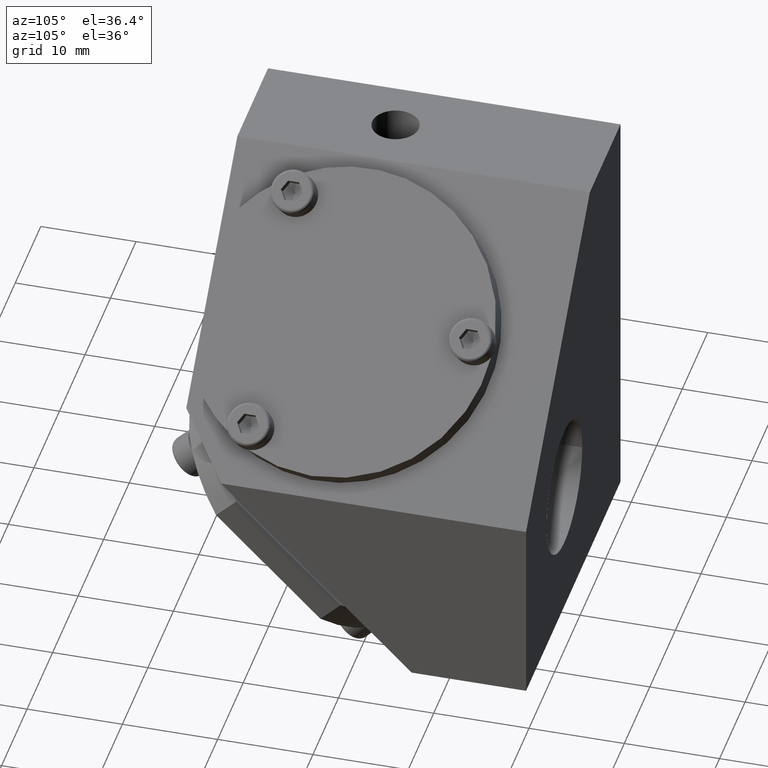
[diagram: clean part render]
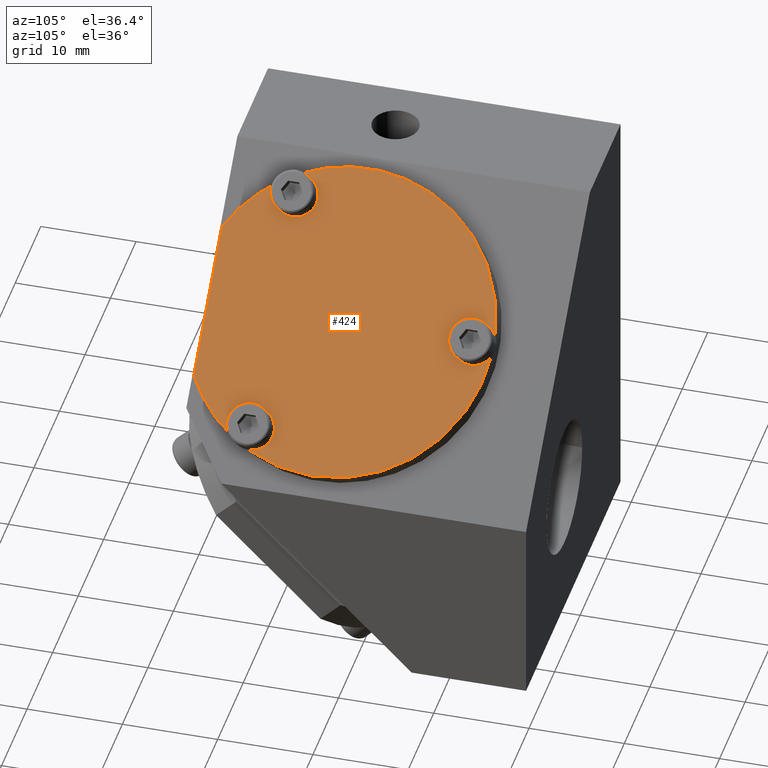
[diagram: same view with one face highlighted and labeled with its STEP entity id]
A machine part, auxiliary view. The second image highlights one B-rep face of the part: STEP entity #424.
In plain terms, the highlighted face is a freeform B-spline surface patch.
Its self-contained STEP definition (entity closure, byte-faithful):
#81=B_SPLINE_SURFACE_WITH_KNOTS('',1,1,((#14206,#14207),(#14208,#14209)),
 .UNSPECIFIED.,.F.,.F.,.F.,(2,2),(2,2),(-10.9537592390235,32.8612777170714),
(-55.1669318215805,-18.9724675358662),.UNSPECIFIED.);
#98=B_SPLINE_SURFACE_WITH_KNOTS('',1,1,((#14710,#14711),(#14712,#14713)),
 .UNSPECIFIED.,.F.,.F.,.F.,(2,2),(2,2),(-7.96546289619784,7.96546289619782),
(-23.8963886885934,-7.9654628961978),.UNSPECIFIED.);
#424=ADVANCED_FACE('',(#674),#81,.T.);
#674=FACE_OUTER_BOUND('',#925,.T.);
#925=EDGE_LOOP('',(#1467,#1468,#1469,#1470,#1471,#1472,#1473,#1474,#1475,
#1476,#1477,#1478,#1479,#1480));
#1467=ORIENTED_EDGE('',*,*,#7224,.T.);
#1468=ORIENTED_EDGE('',*,*,#7220,.F.);
#1469=ORIENTED_EDGE('',*,*,#7225,.T.);
#1470=ORIENTED_EDGE('',*,*,#7226,.T.);
#1471=ORIENTED_EDGE('',*,*,#7227,.T.);
#1472=ORIENTED_EDGE('',*,*,#7228,.T.);
#1473=ORIENTED_EDGE('',*,*,#7229,.T.);
#1474=ORIENTED_EDGE('',*,*,#7230,.T.);
#1475=ORIENTED_EDGE('',*,*,#7231,.T.);
#1476=ORIENTED_EDGE('',*,*,#7232,.T.);
#1477=ORIENTED_EDGE('',*,*,#7233,.T.);
#1478=ORIENTED_EDGE('',*,*,#7234,.T.);
#1479=ORIENTED_EDGE('',*,*,#7235,.T.);
#1480=ORIENTED_EDGE('',*,*,#7236,.T.);
#2793=PCURVE('',#9150,#4123);
#2797=PCURVE('',#81,#4127);
#2798=PCURVE('',#81,#4128);
#2799=PCURVE('',#81,#4129);
#2800=PCURVE('',#81,#4130);
#2801=PCURVE('',#81,#4131);
#2802=PCURVE('',#81,#4132);
#2803=PCURVE('',#81,#4133);
#2804=PCURVE('',#81,#4134);
#2805=PCURVE('',#81,#4135);
#2806=PCURVE('',#81,#4136);
#2807=PCURVE('',#81,#4137);
#2808=PCURVE('',#81,#4138);
#2809=PCURVE('',#81,#4139);
#2810=PCURVE('',#81,#4140);
#2836=PCURVE('',#9154,#4166);
#2853=PCURVE('',#9156,#4183);
#2855=PCURVE('',#9156,#4185);
#3027=PCURVE('',#98,#4357);
#3103=PCURVE('',#9187,#4433);
#3105=PCURVE('',#9187,#4435);
#3107=PCURVE('',#9187,#4437);
#3109=PCURVE('',#9187,#4439);
#3474=PCURVE('',#9233,#4804);
#3476=PCURVE('',#9233,#4806);
#3486=PCURVE('',#9235,#4816);
#3488=PCURVE('',#9235,#4818);
#3498=PCURVE('',#9237,#4828);
#4123=DEFINITIONAL_REPRESENTATION('',(#5443),#23564);
#4127=DEFINITIONAL_REPRESENTATION('',(#7945),#23564);
#4128=DEFINITIONAL_REPRESENTATION('',(#7946),#23564);
#4129=DEFINITIONAL_REPRESENTATION('',(#7948),#23564);
#4130=DEFINITIONAL_REPRESENTATION('',(#7950),#23564);
#4131=DEFINITIONAL_REPRESENTATION('',(#5448),#23564);
#4132=DEFINITIONAL_REPRESENTATION('',(#7952),#23564);
#4133=DEFINITIONAL_REPRESENTATION('',(#7954),#23564);
#4134=DEFINITIONAL_REPRESENTATION('',(#7956),#23564);
#4135=DEFINITIONAL_REPRESENTATION('',(#7958),#23564);
#4136=DEFINITIONAL_REPRESENTATION('',(#7960),#23564);
#4137=DEFINITIONAL_REPRESENTATION('',(#7962),#23564);
#4138=DEFINITIONAL_REPRESENTATION('',(#7964),#23564);
#4139=DEFINITIONAL_REPRESENTATION('',(#7966),#23564);
#4140=DEFINITIONAL_REPRESENTATION('',(#7968),#23564);
#4166=DEFINITIONAL_REPRESENTATION('',(#5464),#23564);
#4183=DEFINITIONAL_REPRESENTATION('',(#5474),#23564);
#4185=DEFINITIONAL_REPRESENTATION('',(#5476),#23564);
#4357=DEFINITIONAL_REPRESENTATION('',(#5598),#23564);
#4433=DEFINITIONAL_REPRESENTATION('',(#5654),#23564);
#4435=DEFINITIONAL_REPRESENTATION('',(#5656),#23564);
#4437=DEFINITIONAL_REPRESENTATION('',(#5658),#23564);
#4439=DEFINITIONAL_REPRESENTATION('',(#5660),#23564);
#4804=DEFINITIONAL_REPRESENTATION('',(#6002),#23564);
#4806=DEFINITIONAL_REPRESENTATION('',(#6004),#23564);
#4816=DEFINITIONAL_REPRESENTATION('',(#6014),#23564);
#4818=DEFINITIONAL_REPRESENTATION('',(#6016),#23564);
#4828=DEFINITIONAL_REPRESENTATION('',(#6026),#23564);
#5443=B_SPLINE_CURVE_WITH_KNOTS('',1,(#16304,#16305),.UNSPECIFIED.,.F.,
 .F.,(2,2),(-7.06858347057708,0.),.UNSPECIFIED.);
#5447=B_SPLINE_CURVE_WITH_KNOTS('',1,(#16347,#16348),.UNSPECIFIED.,.F.,
 .F.,(2,2),(0.,15.4919333848297),.UNSPECIFIED.);
#5448=B_SPLINE_CURVE_WITH_KNOTS('',1,(#16349,#16350),.UNSPECIFIED.,.F.,
 .F.,(2,2),(0.,15.4919333848297),.UNSPECIFIED.);
#5464=B_SPLINE_CURVE_WITH_KNOTS('',1,(#16579,#16580),.UNSPECIFIED.,.F.,
 .F.,(2,2),(0.,7.06858347057696),.UNSPECIFIED.);
#5474=B_SPLINE_CURVE_WITH_KNOTS('',1,(#16686,#16687),.UNSPECIFIED.,.F.,
 .F.,(2,2),(0.,2.38347442152525),.UNSPECIFIED.);
#5476=B_SPLINE_CURVE_WITH_KNOTS('',1,(#16690,#16691),.UNSPECIFIED.,.F.,
 .F.,(2,2),(0.,2.38347442152539),.UNSPECIFIED.);
#5598=B_SPLINE_CURVE_WITH_KNOTS('',1,(#17687,#17688),.UNSPECIFIED.,.F.,
 .F.,(2,2),(0.,15.4919333848297),.UNSPECIFIED.);
#5654=B_SPLINE_CURVE_WITH_KNOTS('',1,(#18004,#18005),.UNSPECIFIED.,.F.,
 .F.,(2,2),(0.,7.56722842218181),.UNSPECIFIED.);
#5656=B_SPLINE_CURVE_WITH_KNOTS('',1,(#18008,#18009),.UNSPECIFIED.,.F.,
 .F.,(2,2),(0.,31.3059931734548),.UNSPECIFIED.);
#5658=B_SPLINE_CURVE_WITH_KNOTS('',1,(#18012,#18013),.UNSPECIFIED.,.F.,
 .F.,(2,2),(0.,31.305993173454),.UNSPECIFIED.);
#5660=B_SPLINE_CURVE_WITH_KNOTS('',1,(#18016,#18017),.UNSPECIFIED.,.F.,
 .F.,(2,2),(0.,7.56722842218153),.UNSPECIFIED.);
#6002=B_SPLINE_CURVE_WITH_KNOTS('',1,(#21495,#21496),.UNSPECIFIED.,.F.,
 .F.,(2,2),(0.,0.0272799313342184),.UNSPECIFIED.);
#6004=B_SPLINE_CURVE_WITH_KNOTS('',1,(#21499,#21500),.UNSPECIFIED.,.F.,
 .F.,(2,2),(7.06858347057708,11.8082523822961),.UNSPECIFIED.);
#6014=B_SPLINE_CURVE_WITH_KNOTS('',1,(#21531,#21532),.UNSPECIFIED.,.F.,
 .F.,(2,2),(0.,4.7396689117186),.UNSPECIFIED.);
#6016=B_SPLINE_CURVE_WITH_KNOTS('',1,(#21535,#21536),.UNSPECIFIED.,.F.,
 .F.,(2,2),(7.06858347057696,7.09586340191074),.UNSPECIFIED.);
#6026=B_SPLINE_CURVE_WITH_KNOTS('',1,(#21567,#21568),.UNSPECIFIED.,.F.,
 .F.,(2,2),(2.38347442152525,9.45205789210234),.UNSPECIFIED.);
#6510=SURFACE_CURVE('',#7940,(#2793,#2798),.PCURVE_S1.);
#6514=SURFACE_CURVE('',#7944,(#2797,#3474),.PCURVE_S1.);
#6515=SURFACE_CURVE('',#7947,(#2799,#3476),.PCURVE_S1.);
#6516=SURFACE_CURVE('',#7949,(#2800,#3103),.PCURVE_S1.);
#6517=SURFACE_CURVE('',#5447,(#2801,#3027),.PCURVE_S1.);
#6518=SURFACE_CURVE('',#7951,(#2802,#3109),.PCURVE_S1.);
#6519=SURFACE_CURVE('',#7953,(#2803,#3486),.PCURVE_S1.);
#6520=SURFACE_CURVE('',#7955,(#2804,#2836),.PCURVE_S1.);
#6521=SURFACE_CURVE('',#7957,(#2805,#3488),.PCURVE_S1.);
#6522=SURFACE_CURVE('',#7959,(#2806,#3107),.PCURVE_S1.);
#6523=SURFACE_CURVE('',#7961,(#2807,#2853),.PCURVE_S1.);
#6524=SURFACE_CURVE('',#7963,(#2808,#3498),.PCURVE_S1.);
#6525=SURFACE_CURVE('',#7965,(#2809,#2855),.PCURVE_S1.);
#6526=SURFACE_CURVE('',#7967,(#2810,#3105),.PCURVE_S1.);
#7220=EDGE_CURVE('',#8703,#8704,#6510,.T.);
#7224=EDGE_CURVE('',#8695,#8704,#6514,.T.);
#7225=EDGE_CURVE('',#8703,#8696,#6515,.T.);
#7226=EDGE_CURVE('',#8696,#8707,#6516,.T.);
#7227=EDGE_CURVE('',#8707,#8708,#6517,.T.);
#7228=EDGE_CURVE('',#8708,#8709,#6518,.T.);
#7229=EDGE_CURVE('',#8709,#8710,#6519,.T.);
#7230=EDGE_CURVE('',#8710,#8711,#6520,.T.);
#7231=EDGE_CURVE('',#8711,#8712,#6521,.T.);
#7232=EDGE_CURVE('',#8712,#8713,#6522,.T.);
#7233=EDGE_CURVE('',#8713,#8714,#6523,.T.);
#7234=EDGE_CURVE('',#8714,#8715,#6524,.T.);
#7235=EDGE_CURVE('',#8715,#8716,#6525,.T.);
#7236=EDGE_CURVE('',#8716,#8695,#6526,.T.);
#7940=(
BOUNDED_CURVE()
B_SPLINE_CURVE(2,(#16299,#16300,#16301,#16302,#16303),.UNSPECIFIED.,.F.,
 .F.)
B_SPLINE_CURVE_WITH_KNOTS((3,2,3),(-7.06858347057708,-3.53429173528854,
0.),.UNSPECIFIED.)
CURVE()
GEOMETRIC_REPRESENTATION_ITEM()
RATIONAL_B_SPLINE_CURVE((1.,0.707106781186551,1.,0.707106781186551,1.))
REPRESENTATION_ITEM('')
);
#7944=(
BOUNDED_CURVE()
B_SPLINE_CURVE(2,(#16320,#16321,#16322),.UNSPECIFIED.,.F.,.F.)
B_SPLINE_CURVE_WITH_KNOTS((3,3),(0.,0.0272799313342184),.UNSPECIFIED.)
CURVE()
GEOMETRIC_REPRESENTATION_ITEM()
RATIONAL_B_SPLINE_CURVE((1.,0.999981624888426,1.))
REPRESENTATION_ITEM('')
);
#7945=(
BOUNDED_CURVE()
B_SPLINE_CURVE(2,(#16323,#16324,#16325),.UNSPECIFIED.,.F.,.F.)
B_SPLINE_CURVE_WITH_KNOTS((3,3),(0.,0.0272799313342184),.UNSPECIFIED.)
CURVE()
GEOMETRIC_REPRESENTATION_ITEM()
RATIONAL_B_SPLINE_CURVE((1.,0.999981624879633,1.))
REPRESENTATION_ITEM('')
);
#7946=(
BOUNDED_CURVE()
B_SPLINE_CURVE(2,(#16326,#16327,#16328,#16329,#16330),.UNSPECIFIED.,.F.,
 .F.)
B_SPLINE_CURVE_WITH_KNOTS((3,2,3),(-7.06858347057708,-3.53429173528854,
0.),.UNSPECIFIED.)
CURVE()
GEOMETRIC_REPRESENTATION_ITEM()
RATIONAL_B_SPLINE_CURVE((1.,0.707106781186551,1.,0.707106781186551,1.))
REPRESENTATION_ITEM('')
);
#7947=(
BOUNDED_CURVE()
B_SPLINE_CURVE(2,(#16331,#16332,#16333,#16334,#16335),.UNSPECIFIED.,.F.,
 .F.)
B_SPLINE_CURVE_WITH_KNOTS((3,2,3),(7.06858347057708,9.43841792643657,11.8082523822961),
 .UNSPECIFIED.)
CURVE()
GEOMETRIC_REPRESENTATION_ITEM()
RATIONAL_B_SPLINE_CURVE((1.,0.864505876024963,1.,0.864505876024963,1.))
REPRESENTATION_ITEM('')
);
#7948=(
BOUNDED_CURVE()
B_SPLINE_CURVE(2,(#16336,#16337,#16338,#16339,#16340),.UNSPECIFIED.,.F.,
 .F.)
B_SPLINE_CURVE_WITH_KNOTS((3,2,3),(7.06858347057708,9.43841792643657,11.8082523822961),
 .UNSPECIFIED.)
CURVE()
GEOMETRIC_REPRESENTATION_ITEM()
RATIONAL_B_SPLINE_CURVE((1.,0.864505876024963,1.,0.864505876024963,1.))
REPRESENTATION_ITEM('')
);
#7949=(
BOUNDED_CURVE()
B_SPLINE_CURVE(2,(#16341,#16342,#16343),.UNSPECIFIED.,.F.,.F.)
B_SPLINE_CURVE_WITH_KNOTS((3,3),(0.,7.56722842218181),.UNSPECIFIED.)
CURVE()
GEOMETRIC_REPRESENTATION_ITEM()
RATIONAL_B_SPLINE_CURVE((1.,0.972169632056699,1.))
REPRESENTATION_ITEM('')
);
#7950=(
BOUNDED_CURVE()
B_SPLINE_CURVE(2,(#16344,#16345,#16346),.UNSPECIFIED.,.F.,.F.)
B_SPLINE_CURVE_WITH_KNOTS((3,3),(0.,7.56722842218181),.UNSPECIFIED.)
CURVE()
GEOMETRIC_REPRESENTATION_ITEM()
RATIONAL_B_SPLINE_CURVE((1.,0.972169632056699,1.))
REPRESENTATION_ITEM('')
);
#7951=(
BOUNDED_CURVE()
B_SPLINE_CURVE(2,(#16351,#16352,#16353),.UNSPECIFIED.,.F.,.F.)
B_SPLINE_CURVE_WITH_KNOTS((3,3),(0.,7.56722842218153),.UNSPECIFIED.)
CURVE()
GEOMETRIC_REPRESENTATION_ITEM()
RATIONAL_B_SPLINE_CURVE((1.,0.972169632056689,1.))
REPRESENTATION_ITEM('')
);
#7952=(
BOUNDED_CURVE()
B_SPLINE_CURVE(2,(#16354,#16355,#16356),.UNSPECIFIED.,.F.,.F.)
B_SPLINE_CURVE_WITH_KNOTS((3,3),(0.,7.56722842218153),.UNSPECIFIED.)
CURVE()
GEOMETRIC_REPRESENTATION_ITEM()
RATIONAL_B_SPLINE_CURVE((1.,0.972169632056689,1.))
REPRESENTATION_ITEM('')
);
#7953=(
BOUNDED_CURVE()
B_SPLINE_CURVE(2,(#16357,#16358,#16359,#16360,#16361),.UNSPECIFIED.,.F.,
 .F.)
B_SPLINE_CURVE_WITH_KNOTS((3,2,3),(0.,2.3698344558593,4.7396689117186),
 .UNSPECIFIED.)
CURVE()
GEOMETRIC_REPRESENTATION_ITEM()
RATIONAL_B_SPLINE_CURVE((1.,0.864505876024987,1.,0.864505876024987,1.))
REPRESENTATION_ITEM('')
);
#7954=(
BOUNDED_CURVE()
B_SPLINE_CURVE(2,(#16362,#16363,#16364,#16365,#16366),.UNSPECIFIED.,.F.,
 .F.)
B_SPLINE_CURVE_WITH_KNOTS((3,2,3),(0.,2.3698344558593,4.7396689117186),
 .UNSPECIFIED.)
CURVE()
GEOMETRIC_REPRESENTATION_ITEM()
RATIONAL_B_SPLINE_CURVE((1.,0.864505876024987,1.,0.864505876024987,1.))
REPRESENTATION_ITEM('')
);
#7955=(
BOUNDED_CURVE()
B_SPLINE_CURVE(2,(#16367,#16368,#16369,#16370,#16371),.UNSPECIFIED.,.F.,
 .F.)
B_SPLINE_CURVE_WITH_KNOTS((3,2,3),(0.,3.53429173528848,7.06858347057696),
 .UNSPECIFIED.)
CURVE()
GEOMETRIC_REPRESENTATION_ITEM()
RATIONAL_B_SPLINE_CURVE((1.,0.707106781186547,1.,0.707106781186547,1.))
REPRESENTATION_ITEM('')
);
#7956=(
BOUNDED_CURVE()
B_SPLINE_CURVE(2,(#16372,#16373,#16374,#16375,#16376),.UNSPECIFIED.,.F.,
 .F.)
B_SPLINE_CURVE_WITH_KNOTS((3,2,3),(0.,3.53429173528848,7.06858347057696),
 .UNSPECIFIED.)
CURVE()
GEOMETRIC_REPRESENTATION_ITEM()
RATIONAL_B_SPLINE_CURVE((1.,0.707106781186547,1.,0.707106781186547,1.))
REPRESENTATION_ITEM('')
);
#7957=(
BOUNDED_CURVE()
B_SPLINE_CURVE(2,(#16377,#16378,#16379),.UNSPECIFIED.,.F.,.F.)
B_SPLINE_CURVE_WITH_KNOTS((3,3),(7.06858347057696,7.09586340191074),
 .UNSPECIFIED.)
CURVE()
GEOMETRIC_REPRESENTATION_ITEM()
RATIONAL_B_SPLINE_CURVE((1.,0.999981624888383,1.))
REPRESENTATION_ITEM('')
);
#7958=(
BOUNDED_CURVE()
B_SPLINE_CURVE(2,(#16380,#16381,#16382),.UNSPECIFIED.,.F.,.F.)
B_SPLINE_CURVE_WITH_KNOTS((3,3),(7.06858347057696,7.09586340191074),
 .UNSPECIFIED.)
CURVE()
GEOMETRIC_REPRESENTATION_ITEM()
RATIONAL_B_SPLINE_CURVE((1.,0.999981624879643,1.))
REPRESENTATION_ITEM('')
);
#7959=(
BOUNDED_CURVE()
B_SPLINE_CURVE(2,(#16383,#16384,#16385,#16386,#16387),.UNSPECIFIED.,.F.,
 .F.)
B_SPLINE_CURVE_WITH_KNOTS((3,2,3),(0.,15.652996586727,31.305993173454),
 .UNSPECIFIED.)
CURVE()
GEOMETRIC_REPRESENTATION_ITEM()
RATIONAL_B_SPLINE_CURVE((1.,0.882729685203361,1.,0.882729685203361,1.))
REPRESENTATION_ITEM('')
);
#7960=(
BOUNDED_CURVE()
B_SPLINE_CURVE(2,(#16388,#16389,#16390,#16391,#16392),.UNSPECIFIED.,.F.,
 .F.)
B_SPLINE_CURVE_WITH_KNOTS((3,2,3),(0.,15.652996586727,31.305993173454),
 .UNSPECIFIED.)
CURVE()
GEOMETRIC_REPRESENTATION_ITEM()
RATIONAL_B_SPLINE_CURVE((1.,0.882729685203361,1.,0.882729685203361,1.))
REPRESENTATION_ITEM('')
);
#7961=(
BOUNDED_CURVE()
B_SPLINE_CURVE(2,(#16393,#16394,#16395),.UNSPECIFIED.,.F.,.F.)
B_SPLINE_CURVE_WITH_KNOTS((3,3),(0.,2.38347442152525),.UNSPECIFIED.)
CURVE()
GEOMETRIC_REPRESENTATION_ITEM()
RATIONAL_B_SPLINE_CURVE((1.,0.862978405547634,1.))
REPRESENTATION_ITEM('')
);
#7962=(
BOUNDED_CURVE()
B_SPLINE_CURVE(2,(#16396,#16397,#16398),.UNSPECIFIED.,.F.,.F.)
B_SPLINE_CURVE_WITH_KNOTS((3,3),(0.,2.38347442152525),.UNSPECIFIED.)
CURVE()
GEOMETRIC_REPRESENTATION_ITEM()
RATIONAL_B_SPLINE_CURVE((1.,0.862978405547634,1.))
REPRESENTATION_ITEM('')
);
#7963=(
BOUNDED_CURVE()
B_SPLINE_CURVE(2,(#16399,#16400,#16401,#16402,#16403),.UNSPECIFIED.,.F.,
 .F.)
B_SPLINE_CURVE_WITH_KNOTS((3,2,3),(2.38347442152525,5.91776615681379,9.45205789210234),
 .UNSPECIFIED.)
CURVE()
GEOMETRIC_REPRESENTATION_ITEM()
RATIONAL_B_SPLINE_CURVE((1.,0.707106781186548,1.,0.707106781186548,1.))
REPRESENTATION_ITEM('')
);
#7964=(
BOUNDED_CURVE()
B_SPLINE_CURVE(2,(#16404,#16405,#16406,#16407,#16408),.UNSPECIFIED.,.F.,
 .F.)
B_SPLINE_CURVE_WITH_KNOTS((3,2,3),(2.38347442152525,5.91776615681379,9.45205789210234),
 .UNSPECIFIED.)
CURVE()
GEOMETRIC_REPRESENTATION_ITEM()
RATIONAL_B_SPLINE_CURVE((1.,0.707106781186548,1.,0.707106781186548,1.))
REPRESENTATION_ITEM('')
);
#7965=(
BOUNDED_CURVE()
B_SPLINE_CURVE(2,(#16409,#16410,#16411),.UNSPECIFIED.,.F.,.F.)
B_SPLINE_CURVE_WITH_KNOTS((3,3),(0.,2.38347442152539),.UNSPECIFIED.)
CURVE()
GEOMETRIC_REPRESENTATION_ITEM()
RATIONAL_B_SPLINE_CURVE((1.,0.86297840554761,1.))
REPRESENTATION_ITEM('')
);
#7966=(
BOUNDED_CURVE()
B_SPLINE_CURVE(2,(#16412,#16413,#16414),.UNSPECIFIED.,.F.,.F.)
B_SPLINE_CURVE_WITH_KNOTS((3,3),(0.,2.38347442152539),.UNSPECIFIED.)
CURVE()
GEOMETRIC_REPRESENTATION_ITEM()
RATIONAL_B_SPLINE_CURVE((1.,0.86297840554761,1.))
REPRESENTATION_ITEM('')
);
#7967=(
BOUNDED_CURVE()
B_SPLINE_CURVE(2,(#16415,#16416,#16417,#16418,#16419),.UNSPECIFIED.,.F.,
 .F.)
B_SPLINE_CURVE_WITH_KNOTS((3,2,3),(0.,23.8314204925631,31.3059931734548),
 .UNSPECIFIED.)
CURVE()
GEOMETRIC_REPRESENTATION_ITEM()
RATIONAL_B_SPLINE_CURVE((1.,0.731037207884863,1.,0.974265593255028,1.))
REPRESENTATION_ITEM('')
);
#7968=(
BOUNDED_CURVE()
B_SPLINE_CURVE(2,(#16420,#16421,#16422,#16423,#16424),.UNSPECIFIED.,.F.,
 .F.)
B_SPLINE_CURVE_WITH_KNOTS((3,2,3),(0.,15.6529965867274,31.3059931734548),
 .UNSPECIFIED.)
CURVE()
GEOMETRIC_REPRESENTATION_ITEM()
RATIONAL_B_SPLINE_CURVE((1.,0.882729685203357,1.,0.882729685203357,1.))
REPRESENTATION_ITEM('')
);
#8695=VERTEX_POINT('',#15861);
#8696=VERTEX_POINT('',#15862);
#8703=VERTEX_POINT('',#15869);
#8704=VERTEX_POINT('',#15870);
#8707=VERTEX_POINT('',#15873);
#8708=VERTEX_POINT('',#15874);
#8709=VERTEX_POINT('',#15875);
#8710=VERTEX_POINT('',#15876);
#8711=VERTEX_POINT('',#15877);
#8712=VERTEX_POINT('',#15878);
#8713=VERTEX_POINT('',#15879);
#8714=VERTEX_POINT('',#15880);
#8715=VERTEX_POINT('',#15881);
#8716=VERTEX_POINT('',#15882);
#9150=(
BOUNDED_SURFACE()
B_SPLINE_SURFACE(2,1,((#14196,#14197),(#14198,#14199),(#14200,#14201),(#14202,
#14203),(#14204,#14205)),.UNSPECIFIED.,.F.,.F.,.F.)
B_SPLINE_SURFACE_WITH_KNOTS((3,2,3),(2,2),(-7.7715611723761E-16,1.5707963267949,
3.14159265358979),(0.,8.77672391511751),.UNSPECIFIED.)
GEOMETRIC_REPRESENTATION_ITEM()
RATIONAL_B_SPLINE_SURFACE(((1.,1.),(0.707106781186548,0.707106781186548),
(1.,1.),(0.707106781186548,0.707106781186548),(1.,1.)))
REPRESENTATION_ITEM('')
SURFACE()
);
#9154=(
BOUNDED_SURFACE()
B_SPLINE_SURFACE(2,1,((#14268,#14269),(#14270,#14271),(#14272,#14273),(#14274,
#14275),(#14276,#14277)),.UNSPECIFIED.,.F.,.F.,.F.)
B_SPLINE_SURFACE_WITH_KNOTS((3,2,3),(2,2),(-2.27595720048157E-15,1.5707963267949,
3.14159265358979),(0.,8.4461207748232),.UNSPECIFIED.)
GEOMETRIC_REPRESENTATION_ITEM()
RATIONAL_B_SPLINE_SURFACE(((1.,1.),(0.707106781186548,0.707106781186548),
(1.,1.),(0.707106781186548,0.707106781186548),(1.,1.)))
REPRESENTATION_ITEM('')
SURFACE()
);
#9156=(
BOUNDED_SURFACE()
B_SPLINE_SURFACE(2,1,((#14296,#14297),(#14298,#14299),(#14300,#14301),(#14302,
#14303),(#14304,#14305)),.UNSPECIFIED.,.F.,.F.,.F.)
B_SPLINE_SURFACE_WITH_KNOTS((3,2,3),(2,2),(-6.38378239159465E-16,1.5707963267949,
3.14159265358979),(0.,8.44646770503396),.UNSPECIFIED.)
GEOMETRIC_REPRESENTATION_ITEM()
RATIONAL_B_SPLINE_SURFACE(((1.,1.),(0.707106781186548,0.707106781186548),
(1.,1.),(0.707106781186548,0.707106781186548),(1.,1.)))
REPRESENTATION_ITEM('')
SURFACE()
);
#9187=(
BOUNDED_SURFACE()
B_SPLINE_SURFACE(2,1,((#14906,#14907),(#14908,#14909),(#14910,#14911),(#14912,
#14913),(#14914,#14915),(#14916,#14917),(#14918,#14919),(#14920,#14921),
(#14922,#14923)),.UNSPECIFIED.,.T.,.F.,.F.)
B_SPLINE_SURFACE_WITH_KNOTS((3,2,2,2,3),(2,2),(0.,32.0000000000001,63.9999999999999,
96.,128.),(0.,47.9856081796871),.UNSPECIFIED.)
GEOMETRIC_REPRESENTATION_ITEM()
RATIONAL_B_SPLINE_SURFACE(((1.,1.),(0.707106781186548,0.707106781186548),
(1.,1.),(0.707106781186548,0.707106781186548),(1.,1.),(0.707106781186548,
0.707106781186548),(1.,1.),(0.707106781186548,0.707106781186548),(1.,1.)))
REPRESENTATION_ITEM('')
SURFACE()
);
#9233=(
BOUNDED_SURFACE()
B_SPLINE_SURFACE(2,1,((#15750,#15751),(#15752,#15753),(#15754,#15755),(#15756,
#15757),(#15758,#15759)),.UNSPECIFIED.,.F.,.F.,.F.)
B_SPLINE_SURFACE_WITH_KNOTS((3,2,3),(2,2),(3.14159265358979,4.71238898038469,
6.28318530717959),(0.,8.77672391511751),.UNSPECIFIED.)
GEOMETRIC_REPRESENTATION_ITEM()
RATIONAL_B_SPLINE_SURFACE(((1.,1.),(0.707106781186548,0.707106781186548),
(1.,1.),(0.707106781186548,0.707106781186548),(1.,1.)))
REPRESENTATION_ITEM('')
SURFACE()
);
#9235=(
BOUNDED_SURFACE()
B_SPLINE_SURFACE(2,1,((#15770,#15771),(#15772,#15773),(#15774,#15775),(#15776,
#15777),(#15778,#15779)),.UNSPECIFIED.,.F.,.F.,.F.)
B_SPLINE_SURFACE_WITH_KNOTS((3,2,3),(2,2),(3.14159265358979,4.71238898038469,
6.28318530717959),(0.,8.4461207748232),.UNSPECIFIED.)
GEOMETRIC_REPRESENTATION_ITEM()
RATIONAL_B_SPLINE_SURFACE(((1.,1.),(0.707106781186548,0.707106781186548),
(1.,1.),(0.707106781186548,0.707106781186548),(1.,1.)))
REPRESENTATION_ITEM('')
SURFACE()
);
#9237=(
BOUNDED_SURFACE()
B_SPLINE_SURFACE(2,1,((#15790,#15791),(#15792,#15793),(#15794,#15795),(#15796,
#15797),(#15798,#15799)),.UNSPECIFIED.,.F.,.F.,.F.)
B_SPLINE_SURFACE_WITH_KNOTS((3,2,3),(2,2),(3.14159265358979,4.71238898038469,
6.28318530717959),(0.,8.44646770503396),.UNSPECIFIED.)
GEOMETRIC_REPRESENTATION_ITEM()
RATIONAL_B_SPLINE_SURFACE(((1.,1.),(0.707106781186548,0.707106781186548),
(1.,1.),(0.707106781186548,0.707106781186548),(1.,1.)))
REPRESENTATION_ITEM('')
SURFACE()
);
#14196=CARTESIAN_POINT('',(-0.156473279994323,87.2942821912086,11.9999998532089));
#14197=CARTESIAN_POINT('',(-6.36255427697605,81.0882011942268,11.9999998532089));
#14198=CARTESIAN_POINT('',(-0.156473279994325,87.2942821912086,9.74999985320889));
#14199=CARTESIAN_POINT('',(-6.36255427697606,81.0882011942268,9.74999985320888));
#14200=CARTESIAN_POINT('',(1.43451697767542,85.7032919335389,9.74999985320889));
#14201=CARTESIAN_POINT('',(-4.7715640193063,79.4972109365571,9.74999985320888));
#14202=CARTESIAN_POINT('',(3.02550723534517,84.1123016758691,9.74999985320889));
#14203=CARTESIAN_POINT('',(-3.18057376163655,77.9062206788873,9.74999985320888));
#14204=CARTESIAN_POINT('',(3.02550723534517,84.1123016758691,11.9999998532089));
#14205=CARTESIAN_POINT('',(-3.18057376163655,77.9062206788873,11.9999998532089));
#14206=CARTESIAN_POINT('',(-9.2823777291351,88.82187877684,22.1162052103521));
#14207=CARTESIAN_POINT('',(-9.28237772913511,88.82187877684,-14.0782590753622));
#14208=CARTESIAN_POINT('',(21.6995320204589,57.8399690272461,22.1162052103521));
#14209=CARTESIAN_POINT('',(21.6995320204588,57.8399690272461,-14.0782590753622));
#14268=CARTESIAN_POINT('',(16.9704739426227,70.128373014861,11.9999998532088));
#14269=CARTESIAN_POINT('',(10.9981646680247,64.1560637402629,11.9999998532088));
#14270=CARTESIAN_POINT('',(16.9704739426227,70.128373014861,9.7499998532088));
#14271=CARTESIAN_POINT('',(10.9981646680247,64.1560637402629,9.74999985320876));
#14272=CARTESIAN_POINT('',(18.5614642002925,68.5373827571913,9.7499998532088));
#14273=CARTESIAN_POINT('',(12.5891549256944,62.5650734825932,9.74999985320876));
#14274=CARTESIAN_POINT('',(20.1524544579622,66.9463924995215,9.7499998532088));
#14275=CARTESIAN_POINT('',(14.1801451833642,60.9740832249234,9.74999985320876));
#14276=CARTESIAN_POINT('',(20.1524544579622,66.9463924995215,11.9999998532088));
#14277=CARTESIAN_POINT('',(14.1801451833642,60.9740832249234,11.9999998532088));
#14296=CARTESIAN_POINT('',(8.39728028594022,78.7016075576609,-9.0000001467912));
#14297=CARTESIAN_POINT('',(2.42472569463754,72.7290529663582,-9.0000001467912));
#14298=CARTESIAN_POINT('',(8.39728028594022,78.7016075576609,-11.2500001467912));
#14299=CARTESIAN_POINT('',(2.42472569463754,72.7290529663582,-11.2500001467912));
#14300=CARTESIAN_POINT('',(9.98827054360996,77.1106172999911,-11.2500001467912));
#14301=CARTESIAN_POINT('',(4.0157159523073,71.1380627086884,-11.2500001467912));
#14302=CARTESIAN_POINT('',(11.5792608012797,75.5196270423214,-11.2500001467912));
#14303=CARTESIAN_POINT('',(5.60670620997706,69.5470724510187,-11.2500001467912));
#14304=CARTESIAN_POINT('',(11.5792608012797,75.5196270423214,-9.0000001467912));
#14305=CARTESIAN_POINT('',(5.60670620997706,69.5470724510187,-9.0000001467912));
#14710=CARTESIAN_POINT('',(-2.81754592231576,64.3048008340655,18.9999998532092));
#14711=CARTESIAN_POINT('',(-2.81754592231576,80.2357266264611,18.9999998532092));
#14712=CARTESIAN_POINT('',(13.1133798700799,64.3048008340655,18.9999998532092));
#14713=CARTESIAN_POINT('',(13.1133798700799,80.2357266264611,18.9999998532092));
#14906=CARTESIAN_POINT('',(21.9452852865942,89.0676320429755,20.9999998532092));
#14907=CARTESIAN_POINT('',(-11.985663656623,55.1366830997579,20.9999998532094));
#14908=CARTESIAN_POINT('',(10.6315767876094,100.38134054196,20.9999998532092));
#14909=CARTESIAN_POINT('',(-23.2993721556077,66.4503915987425,20.9999998532091));
#14910=CARTESIAN_POINT('',(10.6315767876093,100.38134054196,4.99999985320916));
#14911=CARTESIAN_POINT('',(-23.2993721556076,66.4503915987422,4.99999985320927));
#14912=CARTESIAN_POINT('',(10.6315767876092,100.38134054196,-11.0000001467908));
#14913=CARTESIAN_POINT('',(-23.2993721556076,66.450391598742,-11.0000001467906));
#14914=CARTESIAN_POINT('',(21.9452852865941,89.0676320429753,-11.0000001467908));
#14915=CARTESIAN_POINT('',(-11.9856636566228,55.1366830997574,-11.0000001467904));
#14916=CARTESIAN_POINT('',(33.258993785579,77.7539235439906,-11.0000001467908));
#14917=CARTESIAN_POINT('',(-0.671955157637981,43.8229746007729,-11.0000001467901));
#14918=CARTESIAN_POINT('',(33.2589937855791,77.7539235439907,4.99999985320918));
#14919=CARTESIAN_POINT('',(-0.671955157638074,43.8229746007731,4.99999985320975));
#14920=CARTESIAN_POINT('',(33.2589937855791,77.7539235439908,20.9999998532092));
#14921=CARTESIAN_POINT('',(-0.671955157638166,43.8229746007734,20.9999998532096));
#14922=CARTESIAN_POINT('',(21.9452852865942,89.0676320429755,20.9999998532092));
#14923=CARTESIAN_POINT('',(-11.985663656623,55.1366830997579,20.9999998532094));
#15750=CARTESIAN_POINT('',(3.02550723534516,84.1123016758691,11.9999998532089));
#15751=CARTESIAN_POINT('',(-3.18057376163655,77.9062206788873,11.9999998532089));
#15752=CARTESIAN_POINT('',(3.02550723534516,84.1123016758691,14.2499998532089));
#15753=CARTESIAN_POINT('',(-3.18057376163655,77.9062206788873,14.2499998532089));
#15754=CARTESIAN_POINT('',(1.43451697767542,85.7032919335389,14.2499998532089));
#15755=CARTESIAN_POINT('',(-4.7715640193063,79.4972109365571,14.2499998532089));
#15756=CARTESIAN_POINT('',(-0.156473279994319,87.2942821912086,14.2499998532089));
#15757=CARTESIAN_POINT('',(-6.36255427697605,81.0882011942268,14.2499998532089));
#15758=CARTESIAN_POINT('',(-0.15647327999432,87.2942821912086,11.9999998532089));
#15759=CARTESIAN_POINT('',(-6.36255427697605,81.0882011942268,11.9999998532089));
#15770=CARTESIAN_POINT('',(20.1524544579622,66.9463924995216,11.9999998532088));
#15771=CARTESIAN_POINT('',(14.1801451833642,60.9740832249234,11.9999998532088));
#15772=CARTESIAN_POINT('',(20.1524544579622,66.9463924995216,14.2499998532088));
#15773=CARTESIAN_POINT('',(14.1801451833642,60.9740832249234,14.2499998532088));
#15774=CARTESIAN_POINT('',(18.5614642002925,68.5373827571913,14.2499998532088));
#15775=CARTESIAN_POINT('',(12.5891549256944,62.5650734825932,14.2499998532088));
#15776=CARTESIAN_POINT('',(16.9704739426227,70.128373014861,14.2499998532088));
#15777=CARTESIAN_POINT('',(10.9981646680247,64.1560637402629,14.2499998532088));
#15778=CARTESIAN_POINT('',(16.9704739426227,70.128373014861,11.9999998532088));
#15779=CARTESIAN_POINT('',(10.9981646680247,64.1560637402629,11.9999998532088));
#15790=CARTESIAN_POINT('',(11.5792608012797,75.5196270423214,-9.0000001467912));
#15791=CARTESIAN_POINT('',(5.60670620997706,69.5470724510187,-9.0000001467912));
#15792=CARTESIAN_POINT('',(11.5792608012797,75.5196270423214,-6.7500001467912));
#15793=CARTESIAN_POINT('',(5.60670620997706,69.5470724510187,-6.75000014679117));
#15794=CARTESIAN_POINT('',(9.98827054360996,77.1106172999911,-6.7500001467912));
#15795=CARTESIAN_POINT('',(4.0157159523073,71.1380627086884,-6.75000014679117));
#15796=CARTESIAN_POINT('',(8.39728028594023,78.7016075576608,-6.7500001467912));
#15797=CARTESIAN_POINT('',(2.42472569463753,72.7290529663581,-6.75000014679116));
#15798=CARTESIAN_POINT('',(8.39728028594022,78.7016075576608,-9.0000001467912));
#15799=CARTESIAN_POINT('',(2.42472569463753,72.7290529663581,-9.00000014679121));
#15861=CARTESIAN_POINT('',(-3.95551027427336,83.4950113219784,12.0272791161833));
#15862=CARTESIAN_POINT('',(-3.17677868288795,82.716279730593,13.9347741616632));
#15869=CARTESIAN_POINT('',(-0.77364669640955,80.3131477441145,11.9999998532089));
#15870=CARTESIAN_POINT('',(-3.95562721174895,83.4951282594539,11.9999998532089));
#15873=CARTESIAN_POINT('',(0.731351570610186,78.8081494770948,18.9999998532091));
#15874=CARTESIAN_POINT('',(11.6858027207136,67.8536983269914,18.9999998532092));
#15875=CARTESIAN_POINT('',(15.5939329742117,63.9455680734933,13.9347741616634));
#15876=CARTESIAN_POINT('',(13.1908009877334,66.3487000599716,11.9999998532088));
#15877=CARTESIAN_POINT('',(16.3727815030729,63.1667195446321,11.9999998532088));
#15878=CARTESIAN_POINT('',(16.3726645655974,63.1668364821076,12.0272791161827));
#15879=CARTESIAN_POINT('',(6.98730873704819,72.5521923106568,-10.9620537182193));
#15880=CARTESIAN_POINT('',(7.79956740333165,71.7399336443734,-9.0000001467912));
#15881=CARTESIAN_POINT('',(4.61758688799219,74.9219141597128,-9.0000001467912));
#15882=CARTESIAN_POINT('',(5.4298455542757,74.1096554934293,-10.9620537182193));
#16299=CARTESIAN_POINT('',(-0.77364669640955,80.3131477441145,11.9999998532089));
#16300=CARTESIAN_POINT('',(-0.773646696409555,80.3131477441145,9.74999985320909));
#16301=CARTESIAN_POINT('',(-2.36463695407926,81.9041380017842,9.74999985320909));
#16302=CARTESIAN_POINT('',(-3.95562721174893,83.4951282594539,9.74999985320909));
#16303=CARTESIAN_POINT('',(-3.95562721174895,83.4951282594539,11.9999998532089));
#16304=CARTESIAN_POINT('',(3.14159265358979,5.3728150158305));
#16305=CARTESIAN_POINT('',(-7.7715611723761E-16,5.37281501583047));
#16320=CARTESIAN_POINT('',(-3.95551027427336,83.4950113219784,12.0272791161833));
#16321=CARTESIAN_POINT('',(-3.95562721174891,83.4951282594539,12.0136399827094));
#16322=CARTESIAN_POINT('',(-3.95562721174895,83.4951282594539,11.9999998532089));
#16323=CARTESIAN_POINT('',(-3.42043103939428,-45.0780057274117));
#16324=CARTESIAN_POINT('',(-3.42059641395816,-45.064366597198));
#16325=CARTESIAN_POINT('',(-3.42059641395814,-45.0507264644373));
#16326=CARTESIAN_POINT('',(1.07940358604152,-45.0507264644373));
#16327=CARTESIAN_POINT('',(1.07940358604151,-42.8007264644375));
#16328=CARTESIAN_POINT('',(-1.17059641395833,-42.8007264644375));
#16329=CARTESIAN_POINT('',(-3.42059641395812,-42.8007264644375));
#16330=CARTESIAN_POINT('',(-3.42059641395814,-45.0507264644373));
#16331=CARTESIAN_POINT('',(-0.77364669640955,80.3131477441145,11.9999998532089));
#16332=CARTESIAN_POINT('',(-0.77364669640956,80.3131477441145,13.3081472385437));
#16333=CARTESIAN_POINT('',(-1.57750913040059,81.1170101781056,13.9553411478123));
#16334=CARTESIAN_POINT('',(-2.38137156439164,81.9208726120966,14.6025350570809));
#16335=CARTESIAN_POINT('',(-3.17677868288795,82.716279730593,13.9347741616632));
#16336=CARTESIAN_POINT('',(1.07940358604152,-45.0507264644373));
#16337=CARTESIAN_POINT('',(1.07940358604154,-46.3588738497721));
#16338=CARTESIAN_POINT('',(-0.0574295703907737,-47.0060677590407));
#16339=CARTESIAN_POINT('',(-1.19426272682311,-47.6532616683093));
#16340=CARTESIAN_POINT('',(-2.31913826140866,-46.9855007728916));
#16341=CARTESIAN_POINT('',(-3.17677868288795,82.716279730593,13.9347741616632));
#16342=CARTESIAN_POINT('',(-1.65427572238678,81.1937767700918,17.1333400215313));
#16343=CARTESIAN_POINT('',(0.731351570610186,78.8081494770948,18.9999998532091));
#16344=CARTESIAN_POINT('',(-2.31913826140866,-46.9855007728916));
#16345=CARTESIAN_POINT('',(-0.165993925914685,-50.1840666327597));
#16346=CARTESIAN_POINT('',(3.20779254660906,-52.0507264644375));
#16347=CARTESIAN_POINT('',(0.731351570610186,78.8081494770948,18.9999998532091));
#16348=CARTESIAN_POINT('',(11.6858027207136,67.8536983269914,18.9999998532092));
#16349=CARTESIAN_POINT('',(3.20779254660906,-52.0507264644375));
#16350=CARTESIAN_POINT('',(18.6997259314388,-52.0507264644376));
#16351=CARTESIAN_POINT('',(11.6858027207136,67.8536983269914,18.9999998532092));
#16352=CARTESIAN_POINT('',(14.0714300137106,65.4680710339944,17.1333400215316));
#16353=CARTESIAN_POINT('',(15.5939329742117,63.9455680734933,13.9347741616634));
#16354=CARTESIAN_POINT('',(18.6997259314388,-52.0507264644376));
#16355=CARTESIAN_POINT('',(22.0735124039625,-50.18406663276));
#16356=CARTESIAN_POINT('',(24.2266567394565,-46.9855007728918));
#16357=CARTESIAN_POINT('',(15.5939329742117,63.9455680734933,13.9347741616634));
#16358=CARTESIAN_POINT('',(14.7985258557153,64.7409751919897,14.602535057081));
#16359=CARTESIAN_POINT('',(13.9946634217243,65.5448376259807,13.9553411478123));
#16360=CARTESIAN_POINT('',(13.1908009877334,66.3487000599716,13.3081472385436));
#16361=CARTESIAN_POINT('',(13.1908009877334,66.3487000599716,11.9999998532088));
#16362=CARTESIAN_POINT('',(24.2266567394565,-46.9855007728918));
#16363=CARTESIAN_POINT('',(23.1017812048708,-47.6532616683094));
#16364=CARTESIAN_POINT('',(21.9649480484384,-47.0060677590407));
#16365=CARTESIAN_POINT('',(20.8281148920063,-46.358873849772));
#16366=CARTESIAN_POINT('',(20.8281148920063,-45.0507264644372));
#16367=CARTESIAN_POINT('',(13.1908009877334,66.3487000599716,11.9999998532088));
#16368=CARTESIAN_POINT('',(13.1908009877334,66.3487000599716,9.74999985320875));
#16369=CARTESIAN_POINT('',(14.7817912454031,64.7577098023019,9.74999985320875));
#16370=CARTESIAN_POINT('',(16.3727815030729,63.1667195446321,9.74999985320875));
#16371=CARTESIAN_POINT('',(16.3727815030729,63.1667195446321,11.9999998532088));
#16372=CARTESIAN_POINT('',(20.8281148920063,-45.0507264644372));
#16373=CARTESIAN_POINT('',(20.8281148920063,-42.8007264644372));
#16374=CARTESIAN_POINT('',(23.0781148920062,-42.8007264644372));
#16375=CARTESIAN_POINT('',(25.3281148920063,-42.8007264644372));
#16376=CARTESIAN_POINT('',(25.3281148920063,-45.0507264644372));
#16377=CARTESIAN_POINT('',(16.3727815030729,63.1667195446321,11.9999998532088));
#16378=CARTESIAN_POINT('',(16.3727815030451,63.1667195446599,12.0136399892131));
#16379=CARTESIAN_POINT('',(16.3726645655974,63.1668364821076,12.0272791161827));
#16380=CARTESIAN_POINT('',(25.3281148920063,-45.0507264644372));
#16381=CARTESIAN_POINT('',(25.3281148920063,-45.0643665971977));
#16382=CARTESIAN_POINT('',(25.3279495174425,-45.0780057274111));
#16383=CARTESIAN_POINT('',(16.3726645655974,63.1668364821076,12.0272791161827));
#16384=CARTESIAN_POINT('',(19.0177062079927,60.5217948397123,4.37583010537463));
#16385=CARTESIAN_POINT('',(16.0065361167947,63.5329649309103,-3.00000014679062));
#16386=CARTESIAN_POINT('',(12.9953660255966,66.5441350221083,-10.3758303989559));
#16387=CARTESIAN_POINT('',(6.98730873704819,72.5521923106568,-10.9620537182193));
#16388=CARTESIAN_POINT('',(25.3279495174425,-45.0780057274111));
#16389=CARTESIAN_POINT('',(29.0686032811596,-37.426556716603));
#16390=CARTESIAN_POINT('',(24.810165699575,-30.0507264644378));
#16391=CARTESIAN_POINT('',(20.5517281179906,-22.6748962122725));
#16392=CARTESIAN_POINT('',(12.0550520170109,-22.0886728930091));
#16393=CARTESIAN_POINT('',(6.98730873704819,72.5521923106568,-10.9620537182193));
#16394=CARTESIAN_POINT('',(7.79956740333163,71.7399336443734,-10.3172889747655));
#16395=CARTESIAN_POINT('',(7.79956740333165,71.7399336443734,-9.0000001467912));
#16396=CARTESIAN_POINT('',(12.0550520170109,-22.0886728930091));
#16397=CARTESIAN_POINT('',(13.2037592390239,-22.7334376364629));
#16398=CARTESIAN_POINT('',(13.2037592390239,-24.0507264644372));
#16399=CARTESIAN_POINT('',(7.79956740333165,71.7399336443734,-9.0000001467912));
#16400=CARTESIAN_POINT('',(7.79956740333165,71.7399336443734,-6.75000014679123));
#16401=CARTESIAN_POINT('',(6.20857714566192,73.3309239020431,-6.75000014679123));
#16402=CARTESIAN_POINT('',(4.61758688799219,74.9219141597128,-6.75000014679122));
#16403=CARTESIAN_POINT('',(4.61758688799219,74.9219141597128,-9.0000001467912));
#16404=CARTESIAN_POINT('',(13.2037592390239,-24.0507264644372));
#16405=CARTESIAN_POINT('',(13.2037592390239,-26.3007264644372));
#16406=CARTESIAN_POINT('',(10.953759239024,-26.3007264644372));
#16407=CARTESIAN_POINT('',(8.70375923902401,-26.3007264644372));
#16408=CARTESIAN_POINT('',(8.70375923902401,-24.0507264644372));
#16409=CARTESIAN_POINT('',(4.61758688799219,74.9219141597128,-9.0000001467912));
#16410=CARTESIAN_POINT('',(4.61758688799219,74.9219141597128,-10.3172889747656));
#16411=CARTESIAN_POINT('',(5.4298455542757,74.1096554934293,-10.9620537182193));
#16412=CARTESIAN_POINT('',(8.70375923902401,-24.0507264644372));
#16413=CARTESIAN_POINT('',(8.70375923902401,-22.7334376364628));
#16414=CARTESIAN_POINT('',(9.85246646103723,-22.0886728930091));
#16415=CARTESIAN_POINT('',(5.42984555427569,74.1096554934293,-10.9620537182193));
#16416=CARTESIAN_POINT('',(-5.10513135332276,84.6446324010276,-9.93412591484969));
#16417=CARTESIAN_POINT('',(-5.10513135332276,84.6446324010277,4.99999985320924));
#16418=CARTESIAN_POINT('',(-5.10513135332277,84.6446324010278,8.70171065362763));
#16419=CARTESIAN_POINT('',(-3.95551027427336,83.4950113219784,12.0272791161833));
#16420=CARTESIAN_POINT('',(9.85246646103723,-22.0886728930091));
#16421=CARTESIAN_POINT('',(1.35579036005737,-22.6748962122725));
#16422=CARTESIAN_POINT('',(-2.90264722152717,-30.050726464438));
#16423=CARTESIAN_POINT('',(-7.16108480311163,-37.4265567166035));
#16424=CARTESIAN_POINT('',(-3.42043103939428,-45.0780057274117));
#16579=CARTESIAN_POINT('',(-2.27595720048157E-15,5.3452647541393));
#16580=CARTESIAN_POINT('',(3.14159265358979,5.34526475413933));
#16686=CARTESIAN_POINT('',(2.09486232257465,5.34529366499017));
#16687=CARTESIAN_POINT('',(3.14159265358979,5.3452936649902));
#16690=CARTESIAN_POINT('',(-6.38378239159465E-16,5.34529366499019));
#16691=CARTESIAN_POINT('',(1.04673033101517,5.34529366499017));
#17687=CARTESIAN_POINT('',(-4.41656540327189,-9.39304004556409));
#17688=CARTESIAN_POINT('',(6.53788574683152,-20.3474911956674));
#18004=CARTESIAN_POINT('',(19.7374854825648,22.2550660800134));
#18005=CARTESIAN_POINT('',(10.5558095326497,22.2550660800136));
#18008=CARTESIAN_POINT('',(62.4626294800943,22.2550660800134));
#18009=CARTESIAN_POINT('',(22.4455910141365,22.2550660800134));
#18012=CARTESIAN_POINT('',(105.554408985863,22.2550660800137));
#18013=CARTESIAN_POINT('',(65.5373705199049,22.2550660800134));
#18016=CARTESIAN_POINT('',(117.444190467351,22.2550660800136));
#18017=CARTESIAN_POINT('',(108.262514517436,22.2550660800137));
#21495=CARTESIAN_POINT('',(6.26975203627057,5.37281501583044));
#21496=CARTESIAN_POINT('',(6.28318530717959,5.37281501583048));
#21499=CARTESIAN_POINT('',(3.14159265358979,5.37281501583046));
#21500=CARTESIAN_POINT('',(5.25984306775409,5.37281501583044));
#21531=CARTESIAN_POINT('',(4.16493489301546,5.34526475413935));
#21532=CARTESIAN_POINT('',(6.28318530717959,5.34526475413931));
#21535=CARTESIAN_POINT('',(3.14159265358979,5.34526475413935));
#21536=CARTESIAN_POINT('',(3.15502592449856,5.34526475413935));
#21567=CARTESIAN_POINT('',(3.14159265358979,5.3452936649902));
#21568=CARTESIAN_POINT('',(6.28318530717959,5.3452936649901));
#23564=(
GEOMETRIC_REPRESENTATION_CONTEXT(2)
PARAMETRIC_REPRESENTATION_CONTEXT()
REPRESENTATION_CONTEXT('pspace','')
);